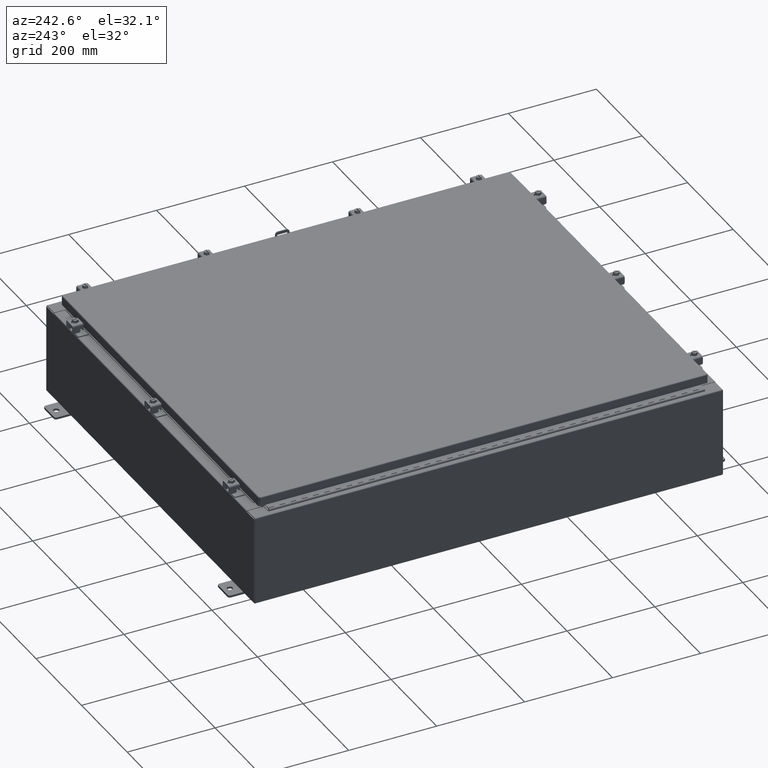
[diagram: clean part render]
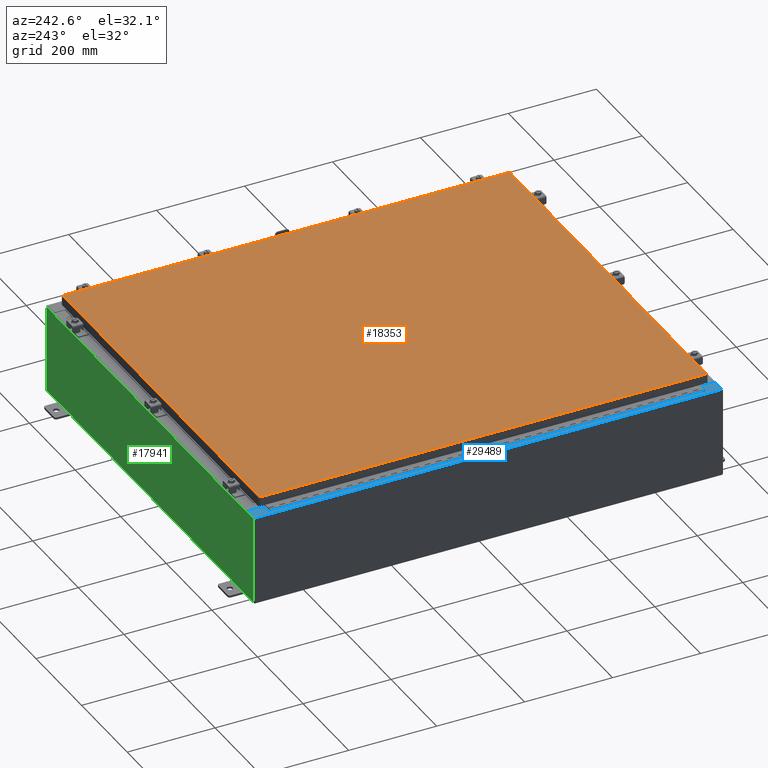
[diagram: same view with three faces highlighted in distinct colors, each labeled with its STEP entity id]
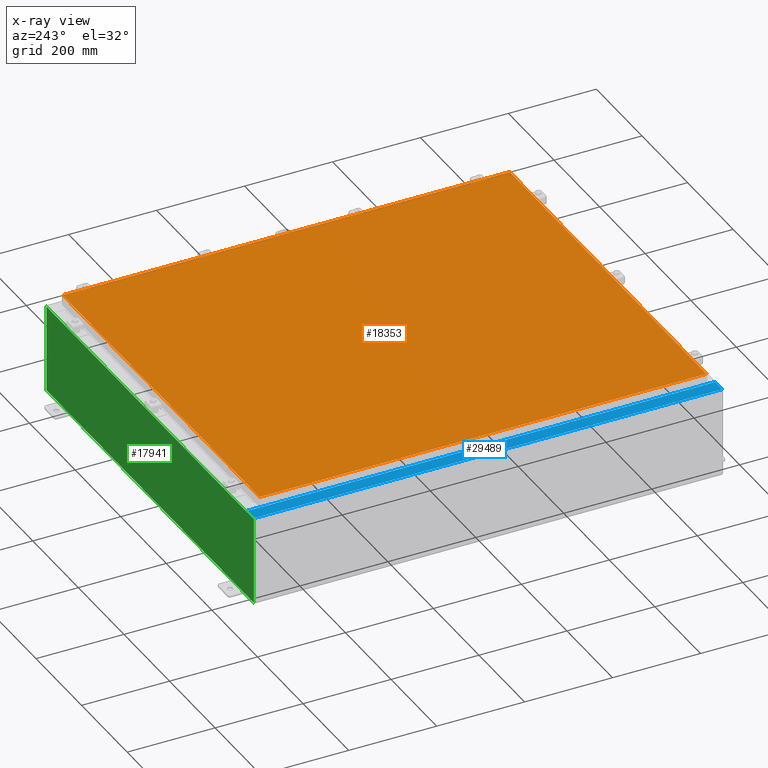
[diagram: x-ray of the same camera — body ghosted, the three highlighted faces saturated]
A machine part, auxiliary view with three faces highlighted in distinct colors.
The next image is the same camera in x-ray (body ghosted, the three faces saturated) — at least one of them is partly hidden behind the body in this view.
Their STEP definitions:

[orange] entity #18353 — the highlighted planar face has unit normal (0, 0, -1).
#290 = CARTESIAN_POINT ( 'NONE',  ( -16.99029999999998400, 20.00630000000000300, -2.048885995248197400E-016 ) ) ;
#4265 = DIRECTION ( 'NONE',  ( -1.000000000000000000, 0.0000000000000000000, -0.0000000000000000000 ) ) ;
#5693 = VECTOR ( 'NONE', #7946, 39.37007874015748100 ) ;
#6254 = EDGE_LOOP ( 'NONE', ( #27681, #9066, #42676, #47265 ) ) ;
#7071 = LINE ( 'NONE', #41256, #36309 ) ;
#7946 = DIRECTION ( 'NONE',  ( 0.0000000000000000000, -1.000000000000000000, 0.0000000000000000000 ) ) ;
#8059 = LINE ( 'NONE', #290, #5693 ) ;
#8889 = EDGE_CURVE ( 'NONE', #17192, #26689, #17222, .T. ) ;
#9066 = ORIENTED_EDGE ( 'NONE', *, *, #9402, .T. ) ;
#9402 = EDGE_CURVE ( 'NONE', #49528, #17192, #10587, .T. ) ;
#9453 = CARTESIAN_POINT ( 'NONE',  ( 16.99029999999999800, 20.00630000000000700, 1.946441695485787500E-015 ) ) ;
#9459 = CARTESIAN_POINT ( 'NONE',  ( 16.99029999999999800, -20.00630000000000300, -2.048885995248197400E-016 ) ) ;
#9757 = EDGE_CURVE ( 'NONE', #42767, #49528, #7071, .T. ) ;
#10587 = LINE ( 'NONE', #27753, #20722 ) ;
#13525 = EDGE_CURVE ( 'NONE', #26689, #42767, #8059, .T. ) ;
#13927 = CARTESIAN_POINT ( 'NONE',  ( -16.99029999999998400, 20.00630000000000300, -2.048885995248197400E-016 ) ) ;
#14813 = VECTOR ( 'NONE', #20966, 39.37007874015748100 ) ;
#17192 = VERTEX_POINT ( 'NONE', #28479 ) ;
#17222 = LINE ( 'NONE', #9453, #14813 ) ;
#18353 = ADVANCED_FACE ( 'NONE', ( #36370 ), #38241, .F. ) ;
#18399 = DIRECTION ( 'NONE',  ( 1.000000000000000000, -0.0000000000000000000, -0.0000000000000000000 ) ) ;
#19399 = CARTESIAN_POINT ( 'NONE',  ( 0.0000000000000000000, 0.0000000000000000000, 0.0000000000000000000 ) ) ;
#20722 = VECTOR ( 'NONE', #31584, 39.37007874015748100 ) ;
#20966 = DIRECTION ( 'NONE',  ( -1.000000000000000000, -0.0000000000000000000, -0.0000000000000000000 ) ) ;
#26689 = VERTEX_POINT ( 'NONE', #13927 ) ;
#27041 = DIRECTION ( 'NONE',  ( 0.0000000000000000000, 0.0000000000000000000, -1.000000000000000000 ) ) ;
#27681 = ORIENTED_EDGE ( 'NONE', *, *, #9757, .T. ) ;
#27753 = CARTESIAN_POINT ( 'NONE',  ( 16.99029999999999800, -20.00630000000000300, -2.048885995248197400E-016 ) ) ;
#28479 = CARTESIAN_POINT ( 'NONE',  ( 16.99029999999999800, 20.00630000000000700, 1.946441695485787500E-015 ) ) ;
#31584 = DIRECTION ( 'NONE',  ( 0.0000000000000000000, 1.000000000000000000, 0.0000000000000000000 ) ) ;
#36309 = VECTOR ( 'NONE', #18399, 39.37007874015748100 ) ;
#36370 = FACE_OUTER_BOUND ( 'NONE', #6254, .T. ) ;
#38241 = PLANE ( 'NONE',  #45289 ) ;
#41256 = CARTESIAN_POINT ( 'NONE',  ( -16.99029999999999800, -20.00630000000000700, 1.946441695485787500E-015 ) ) ;
#42330 = CARTESIAN_POINT ( 'NONE',  ( -16.99029999999999800, -20.00630000000000700, 1.946441695485787500E-015 ) ) ;
#42676 = ORIENTED_EDGE ( 'NONE', *, *, #8889, .T. ) ;
#42767 = VERTEX_POINT ( 'NONE', #42330 ) ;
#45289 = AXIS2_PLACEMENT_3D ( 'NONE', #19399, #27041, #4265 ) ;
#47265 = ORIENTED_EDGE ( 'NONE', *, *, #13525, .T. ) ;
#49528 = VERTEX_POINT ( 'NONE', #9459 ) ;

[blue] entity #29489 — the highlighted planar face has unit normal (0, 0, -1).
#268 = DIRECTION ( 'NONE',  ( -0.0000000000000000000, -1.000000000000000000, -0.0000000000000000000 ) ) ;
#1330 = VERTEX_POINT ( 'NONE', #45860 ) ;
#1677 = VECTOR ( 'NONE', #26052, 39.37007874015748100 ) ;
#1999 = ORIENTED_EDGE ( 'NONE', *, *, #44212, .F. ) ;
#2189 = ORIENTED_EDGE ( 'NONE', *, *, #44145, .F. ) ;
#2553 = CARTESIAN_POINT ( 'NONE',  ( -16.75005000000003000, 19.61242499999999500, 7.925300000000008900 ) ) ;
#2993 = CARTESIAN_POINT ( 'NONE',  ( -17.91230000000002300, 20.92529999999999600, 7.925300000000000000 ) ) ;
#3390 = VECTOR ( 'NONE', #34575, 39.37007874015748100 ) ;
#3400 = VERTEX_POINT ( 'NONE', #19755 ) ;
#3444 = FACE_OUTER_BOUND ( 'NONE', #24900, .T. ) ;
#3531 = LINE ( 'NONE', #18211, #12423 ) ;
#3636 = ORIENTED_EDGE ( 'NONE', *, *, #42020, .T. ) ;
#3907 = CARTESIAN_POINT ( 'NONE',  ( -16.75005000000003000, 19.59374999999999600, 7.925300000000008900 ) ) ;
#4589 = LINE ( 'NONE', #23044, #3390 ) ;
#5366 = CARTESIAN_POINT ( 'NONE',  ( -16.75005000000003000, -19.61242499999999100, 7.925300000000008900 ) ) ;
#6382 = DIRECTION ( 'NONE',  ( 1.000000000000000000, 0.0000000000000000000, 0.0000000000000000000 ) ) ;
#7154 = ORIENTED_EDGE ( 'NONE', *, *, #43254, .T. ) ;
#7159 = CARTESIAN_POINT ( 'NONE',  ( -16.69970000000002800, -20.92529999999999300, 7.925300000000008900 ) ) ;
#7590 = VERTEX_POINT ( 'NONE', #13552 ) ;
#7993 = VERTEX_POINT ( 'NONE', #38382 ) ;
#8133 = ORIENTED_EDGE ( 'NONE', *, *, #46069, .F. ) ;
#9158 = DIRECTION ( 'NONE',  ( 1.000000000000000000, 0.0000000000000000000, 0.0000000000000000000 ) ) ;
#9810 = CARTESIAN_POINT ( 'NONE',  ( -16.75005000000003000, -19.59374999999999300, 7.925300000000008900 ) ) ;
#10735 = CARTESIAN_POINT ( 'NONE',  ( -16.69970000000002800, 19.63109999999999300, 7.925300000000008900 ) ) ;
#11008 = VECTOR ( 'NONE', #35527, 39.37007874015748100 ) ;
#12423 = VECTOR ( 'NONE', #48779, 39.37007874015748100 ) ;
#13400 = LINE ( 'NONE', #16543, #11008 ) ;
#13552 = CARTESIAN_POINT ( 'NONE',  ( -16.75005000000003000, 19.59374999999999600, 7.925300000000008900 ) ) ;
#13958 = LINE ( 'NONE', #21486, #34282 ) ;
#14031 = ORIENTED_EDGE ( 'NONE', *, *, #44296, .F. ) ;
#14162 = VECTOR ( 'NONE', #45051, 39.37007874015748100 ) ;
#14858 = CARTESIAN_POINT ( 'NONE',  ( -5.679009539018325600E-014, 0.0000000000000000000, 7.925300000000127900 ) ) ;
#16543 = CARTESIAN_POINT ( 'NONE',  ( -16.75005000000003000, -19.63109999999999300, 7.925300000000008900 ) ) ;
#17046 = ORIENTED_EDGE ( 'NONE', *, *, #41861, .T. ) ;
#18211 = CARTESIAN_POINT ( 'NONE',  ( -5.679009539018325600E-014, 20.92529999999999600, 7.925300000000127900 ) ) ;
#18691 = DIRECTION ( 'NONE',  ( 7.132762385546384700E-015, 0.0000000000000000000, -1.000000000000000000 ) ) ;
#19008 = ORIENTED_EDGE ( 'NONE', *, *, #44892, .F. ) ;
#19614 = VECTOR ( 'NONE', #20037, 39.37007874015748100 ) ;
#19755 = CARTESIAN_POINT ( 'NONE',  ( -17.91230000000002300, -20.92529999999999300, 7.925300000000000000 ) ) ;
#19815 = LINE ( 'NONE', #3907, #28748 ) ;
#19962 = CIRCLE ( 'NONE', #39369, 0.01867499999999949400 ) ;
#20037 = DIRECTION ( 'NONE',  ( 0.0000000000000000000, 1.000000000000000000, 0.0000000000000000000 ) ) ;
#21428 = ORIENTED_EDGE ( 'NONE', *, *, #42583, .F. ) ;
#21486 = CARTESIAN_POINT ( 'NONE',  ( -16.71270000000003000, -19.59374999999999300, 7.925300000000008900 ) ) ;
#21546 = VERTEX_POINT ( 'NONE', #9810 ) ;
#21786 = VERTEX_POINT ( 'NONE', #7159 ) ;
#21936 = LINE ( 'NONE', #10735, #1677 ) ;
#23044 = CARTESIAN_POINT ( 'NONE',  ( -16.69970000000002800, 0.0000000000000000000, 7.925300000000008900 ) ) ;
#23670 = LINE ( 'NONE', #27436, #42804 ) ;
#23784 = ORIENTED_EDGE ( 'NONE', *, *, #41624, .F. ) ;
#24289 = LINE ( 'NONE', #2993, #14162 ) ;
#24446 = VERTEX_POINT ( 'NONE', #43832 ) ;
#24900 = EDGE_LOOP ( 'NONE', ( #23784, #17046, #3636, #21428, #40150, #7154, #2189, #1999, #14031, #19008, #39737, #8133 ) ) ;
#25047 = AXIS2_PLACEMENT_3D ( 'NONE', #14858, #18691, #45438 ) ;
#25709 = VERTEX_POINT ( 'NONE', #36376 ) ;
#26052 = DIRECTION ( 'NONE',  ( -1.000000000000000000, 0.0000000000000000000, 0.0000000000000000000 ) ) ;
#26538 = DIRECTION ( 'NONE',  ( 1.000000000000000000, 0.0000000000000000000, 0.0000000000000000000 ) ) ;
#27436 = CARTESIAN_POINT ( 'NONE',  ( -1.314176917633203400E-013, -20.92530000000006000, 7.925300000000127900 ) ) ;
#28421 = CARTESIAN_POINT ( 'NONE',  ( -17.91230000000002300, 20.92529999999999600, 7.925300000000000000 ) ) ;
#28748 = VECTOR ( 'NONE', #26538, 39.37007874015748100 ) ;
#29203 = DIRECTION ( 'NONE',  ( -7.132762385546384700E-015, -0.0000000000000000000, 1.000000000000000000 ) ) ;
#29489 = ADVANCED_FACE ( 'NONE', ( #3444 ), #37689, .F. ) ;
#31284 = DIRECTION ( 'NONE',  ( 1.000000000000000000, -3.566381192773192400E-015, 7.132762385546384700E-015 ) ) ;
#32001 = DIRECTION ( 'NONE',  ( -7.132762385546384700E-015, -0.0000000000000000000, 1.000000000000000000 ) ) ;
#33680 = VERTEX_POINT ( 'NONE', #28421 ) ;
#34282 = VECTOR ( 'NONE', #48241, 39.37007874015748100 ) ;
#34575 = DIRECTION ( 'NONE',  ( 0.0000000000000000000, 1.000000000000000000, 0.0000000000000000000 ) ) ;
#35527 = DIRECTION ( 'NONE',  ( 1.000000000000000000, 0.0000000000000000000, 0.0000000000000000000 ) ) ;
#36161 = VERTEX_POINT ( 'NONE', #43707 ) ;
#36376 = CARTESIAN_POINT ( 'NONE',  ( -16.69970000000002800, 19.63109999999999300, 7.925300000000008900 ) ) ;
#37171 = VERTEX_POINT ( 'NONE', #39391 ) ;
#37689 = PLANE ( 'NONE',  #25047 ) ;
#38382 = CARTESIAN_POINT ( 'NONE',  ( -16.69970000000002800, 20.92529999999999600, 7.925300000000008900 ) ) ;
#39054 = CARTESIAN_POINT ( 'NONE',  ( -16.69970000000002800, 0.0000000000000000000, 7.925300000000008900 ) ) ;
#39369 = AXIS2_PLACEMENT_3D ( 'NONE', #5366, #32001, #9158 ) ;
#39391 = CARTESIAN_POINT ( 'NONE',  ( -16.75005000000003000, 19.63109999999999300, 7.925300000000008900 ) ) ;
#39737 = ORIENTED_EDGE ( 'NONE', *, *, #45423, .F. ) ;
#40150 = ORIENTED_EDGE ( 'NONE', *, *, #42809, .T. ) ;
#41112 = LINE ( 'NONE', #39054, #19614 ) ;
#41624 = EDGE_CURVE ( 'NONE', #25709, #37171, #21936, .T. ) ;
#41861 = EDGE_CURVE ( 'NONE', #25709, #7993, #41112, .T. ) ;
#42020 = EDGE_CURVE ( 'NONE', #7993, #33680, #3531, .T. ) ;
#42117 = AXIS2_PLACEMENT_3D ( 'NONE', #2553, #29203, #6382 ) ;
#42569 = VECTOR ( 'NONE', #268, 39.37007874015748100 ) ;
#42583 = EDGE_CURVE ( 'NONE', #3400, #33680, #24289, .T. ) ;
#42804 = VECTOR ( 'NONE', #31284, 39.37007874015748100 ) ;
#42809 = EDGE_CURVE ( 'NONE', #3400, #21786, #23670, .T. ) ;
#43254 = EDGE_CURVE ( 'NONE', #21786, #24446, #4589, .T. ) ;
#43510 = CIRCLE ( 'NONE', #42117, 0.01867499999999949400 ) ;
#43707 = CARTESIAN_POINT ( 'NONE',  ( -16.71270000000003000, 19.59374999999999600, 7.925300000000008900 ) ) ;
#43774 = LINE ( 'NONE', #46017, #42569 ) ;
#43832 = CARTESIAN_POINT ( 'NONE',  ( -16.69970000000002800, -19.63109999999999300, 7.925300000000008900 ) ) ;
#43893 = CARTESIAN_POINT ( 'NONE',  ( -16.71270000000003000, -19.59374999999999300, 7.925300000000008900 ) ) ;
#44145 = EDGE_CURVE ( 'NONE', #1330, #24446, #13400, .T. ) ;
#44212 = EDGE_CURVE ( 'NONE', #21546, #1330, #19962, .T. ) ;
#44263 = VERTEX_POINT ( 'NONE', #43893 ) ;
#44296 = EDGE_CURVE ( 'NONE', #44263, #21546, #13958, .T. ) ;
#44892 = EDGE_CURVE ( 'NONE', #36161, #44263, #43774, .T. ) ;
#45051 = DIRECTION ( 'NONE',  ( -0.0000000000000000000, 1.000000000000000000, -0.0000000000000000000 ) ) ;
#45423 = EDGE_CURVE ( 'NONE', #7590, #36161, #19815, .T. ) ;
#45438 = DIRECTION ( 'NONE',  ( -1.000000000000000000, 0.0000000000000000000, -7.132762385546384700E-015 ) ) ;
#45860 = CARTESIAN_POINT ( 'NONE',  ( -16.75005000000003000, -19.63109999999999300, 7.925300000000008900 ) ) ;
#46017 = CARTESIAN_POINT ( 'NONE',  ( -16.71270000000003000, 19.59374999999999600, 7.925300000000008900 ) ) ;
#46069 = EDGE_CURVE ( 'NONE', #37171, #7590, #43510, .T. ) ;
#48241 = DIRECTION ( 'NONE',  ( -1.000000000000000000, 0.0000000000000000000, 0.0000000000000000000 ) ) ;
#48779 = DIRECTION ( 'NONE',  ( -1.000000000000000000, 0.0000000000000000000, -7.132762385546384700E-015 ) ) ;

[green] entity #17941 — the highlighted planar face has unit normal (0, -1, 0).
#452 = VECTOR ( 'NONE', #27593, 39.37007874015748100 ) ;
#1638 = DIRECTION ( 'NONE',  ( 0.0000000000000000000, 0.0000000000000000000, 1.000000000000000000 ) ) ;
#1642 = LINE ( 'NONE', #42795, #30863 ) ;
#1925 = CARTESIAN_POINT ( 'NONE',  ( -16.67454999999999600, 0.0000000000000000000, 3.874950000000000100 ) ) ;
#1943 = PLANE ( 'NONE',  #46162 ) ;
#3023 = CARTESIAN_POINT ( 'NONE',  ( -16.65587499999999800, 0.0000000000000000000, 3.874950000000000100 ) ) ;
#3519 = CARTESIAN_POINT ( 'NONE',  ( -16.63719999999999600, 3.756290991288361700E-016, 3.912300000000000100 ) ) ;
#3841 = CARTESIAN_POINT ( 'NONE',  ( -16.67454999999999600, 0.0000000000000000000, 3.925300000000000500 ) ) ;
#5192 = VERTEX_POINT ( 'NONE', #10755 ) ;
#5626 = DIRECTION ( 'NONE',  ( 0.0000000000000000000, -1.000000000000000000, 0.0000000000000000000 ) ) ;
#5783 = EDGE_CURVE ( 'NONE', #13607, #24062, #30590, .T. ) ;
#5795 = DIRECTION ( 'NONE',  ( 0.0000000000000000000, -0.0000000000000000000, -1.000000000000000000 ) ) ;
#5846 = ORIENTED_EDGE ( 'NONE', *, *, #8819, .F. ) ;
#6068 = EDGE_CURVE ( 'NONE', #33784, #36267, #10869, .T. ) ;
#6735 = CARTESIAN_POINT ( 'NONE',  ( -16.63719999999999600, 3.756290991288361700E-016, 3.912300000000000100 ) ) ;
#6844 = DIRECTION ( 'NONE',  ( 0.0000000000000000000, 0.0000000000000000000, -1.000000000000000000 ) ) ;
#7059 = LINE ( 'NONE', #39646, #36297 ) ;
#8008 = AXIS2_PLACEMENT_3D ( 'NONE', #10946, #37628, #14799 ) ;
#8455 = EDGE_CURVE ( 'NONE', #31942, #24062, #11246, .T. ) ;
#8466 = EDGE_CURVE ( 'NONE', #19685, #31942, #39293, .T. ) ;
#8524 = EDGE_CURVE ( 'NONE', #27485, #19685, #48307, .T. ) ;
#8598 = EDGE_CURVE ( 'NONE', #27485, #9257, #15435, .T. ) ;
#8613 = CARTESIAN_POINT ( 'NONE',  ( -17.92529999999999600, 0.0000000000000000000, -3.925299999999999100 ) ) ;
#8819 = EDGE_CURVE ( 'NONE', #10541, #9257, #7059, .T. ) ;
#9114 = EDGE_CURVE ( 'NONE', #5192, #10541, #48263, .T. ) ;
#9257 = VERTEX_POINT ( 'NONE', #19440 ) ;
#9332 = EDGE_CURVE ( 'NONE', #33784, #5192, #1642, .T. ) ;
#9389 = EDGE_CURVE ( 'NONE', #36267, #39975, #41018, .T. ) ;
#9435 = LINE ( 'NONE', #25724, #38687 ) ;
#9600 = AXIS2_PLACEMENT_3D ( 'NONE', #3023, #29678, #6844 ) ;
#9690 = EDGE_CURVE ( 'NONE', #39975, #35182, #9435, .T. ) ;
#9828 = EDGE_CURVE ( 'NONE', #35182, #13607, #45310, .T. ) ;
#10324 = CARTESIAN_POINT ( 'NONE',  ( -16.67454999999999600, -0.0000000000000000000, 0.0000000000000000000 ) ) ;
#10541 = VERTEX_POINT ( 'NONE', #19081 ) ;
#10755 = CARTESIAN_POINT ( 'NONE',  ( 16.67455000000000700, 0.0000000000000000000, 3.874950000000000100 ) ) ;
#10869 = LINE ( 'NONE', #12493, #46735 ) ;
#10946 = CARTESIAN_POINT ( 'NONE',  ( 16.65587500000000500, 0.0000000000000000000, 3.874950000000000100 ) ) ;
#11102 = ORIENTED_EDGE ( 'NONE', *, *, #5783, .T. ) ;
#11246 = LINE ( 'NONE', #10324, #40476 ) ;
#12246 = DIRECTION ( 'NONE',  ( -8.681145560800009800E-014, 0.0000000000000000000, -1.000000000000000000 ) ) ;
#12493 = CARTESIAN_POINT ( 'NONE',  ( -17.92529999999999600, 0.0000000000000000000, 3.925300000000000500 ) ) ;
#13607 = VERTEX_POINT ( 'NONE', #19613 ) ;
#13739 = CARTESIAN_POINT ( 'NONE',  ( 16.67455000000001100, 0.0000000000000000000, 3.925300000000000500 ) ) ;
#14799 = DIRECTION ( 'NONE',  ( 0.0000000000000000000, 0.0000000000000000000, -1.000000000000000000 ) ) ;
#15002 = DIRECTION ( 'NONE',  ( 1.000000000000000000, 0.0000000000000000000, 0.0000000000000000000 ) ) ;
#15435 = LINE ( 'NONE', #3519, #24350 ) ;
#16096 = ORIENTED_EDGE ( 'NONE', *, *, #9389, .T. ) ;
#17941 = ADVANCED_FACE ( 'NONE', ( #21456 ), #1943, .F. ) ;
#17999 = CARTESIAN_POINT ( 'NONE',  ( -16.63719999999999600, -0.0000000000000000000, 3.874950000000000100 ) ) ;
#18503 = CARTESIAN_POINT ( 'NONE',  ( -16.63719999999999600, -0.0000000000000000000, 0.0000000000000000000 ) ) ;
#19081 = CARTESIAN_POINT ( 'NONE',  ( 16.63720000000000700, 0.0000000000000000000, 3.874950000000000100 ) ) ;
#19440 = CARTESIAN_POINT ( 'NONE',  ( 16.63720000000000700, 0.0000000000000000000, 3.912300000000000100 ) ) ;
#19613 = CARTESIAN_POINT ( 'NONE',  ( -17.92529999999999600, 0.0000000000000000000, 3.925300000000000500 ) ) ;
#19685 = VERTEX_POINT ( 'NONE', #17999 ) ;
#21456 = FACE_OUTER_BOUND ( 'NONE', #25885, .T. ) ;
#22307 = DIRECTION ( 'NONE',  ( 0.0000000000000000000, 0.0000000000000000000, -1.000000000000000000 ) ) ;
#22799 = ORIENTED_EDGE ( 'NONE', *, *, #8524, .F. ) ;
#24062 = VERTEX_POINT ( 'NONE', #3841 ) ;
#24350 = VECTOR ( 'NONE', #15002, 39.37007874015748100 ) ;
#25657 = DIRECTION ( 'NONE',  ( 0.0000000000000000000, 0.0000000000000000000, 1.000000000000000000 ) ) ;
#25671 = ORIENTED_EDGE ( 'NONE', *, *, #8455, .F. ) ;
#25724 = CARTESIAN_POINT ( 'NONE',  ( -17.92529999999999600, 0.0000000000000000000, -3.925299999999999100 ) ) ;
#25882 = CARTESIAN_POINT ( 'NONE',  ( 17.92530000000000400, 0.0000000000000000000, -3.925299999999999100 ) ) ;
#25885 = EDGE_LOOP ( 'NONE', ( #25671, #49289, #22799, #46697, #5846, #39894, #41477, #28082, #16096, #28394, #27301, #11102 ) ) ;
#26201 = DIRECTION ( 'NONE',  ( 1.000000000000000000, 0.0000000000000000000, 0.0000000000000000000 ) ) ;
#27301 = ORIENTED_EDGE ( 'NONE', *, *, #9828, .T. ) ;
#27485 = VERTEX_POINT ( 'NONE', #6735 ) ;
#27593 = DIRECTION ( 'NONE',  ( 0.0000000000000000000, 0.0000000000000000000, -1.000000000000000000 ) ) ;
#28082 = ORIENTED_EDGE ( 'NONE', *, *, #6068, .T. ) ;
#28394 = ORIENTED_EDGE ( 'NONE', *, *, #9690, .T. ) ;
#29396 = VECTOR ( 'NONE', #26201, 39.37007874015748100 ) ;
#29678 = DIRECTION ( 'NONE',  ( -0.0000000000000000000, 1.000000000000000000, -0.0000000000000000000 ) ) ;
#30590 = LINE ( 'NONE', #37552, #29396 ) ;
#30863 = VECTOR ( 'NONE', #12246, 39.37007874015748100 ) ;
#31426 = CARTESIAN_POINT ( 'NONE',  ( 17.92530000000000400, 0.0000000000000000000, 3.925300000000000500 ) ) ;
#31942 = VERTEX_POINT ( 'NONE', #1925 ) ;
#32982 = CARTESIAN_POINT ( 'NONE',  ( 17.92530000000000400, 0.0000000000000000000, 3.925300000000000500 ) ) ;
#33784 = VERTEX_POINT ( 'NONE', #13739 ) ;
#33908 = VECTOR ( 'NONE', #45479, 39.37007874015748100 ) ;
#34073 = CARTESIAN_POINT ( 'NONE',  ( -17.92529999999999600, 0.0000000000000000000, 3.925300000000000500 ) ) ;
#35182 = VERTEX_POINT ( 'NONE', #8613 ) ;
#35357 = DIRECTION ( 'NONE',  ( 1.000000000000000000, 0.0000000000000000000, 0.0000000000000000000 ) ) ;
#36267 = VERTEX_POINT ( 'NONE', #32982 ) ;
#36297 = VECTOR ( 'NONE', #1638, 39.37007874015748100 ) ;
#36915 = VECTOR ( 'NONE', #22307, 39.37007874015748100 ) ;
#37552 = CARTESIAN_POINT ( 'NONE',  ( -17.92529999999999600, 0.0000000000000000000, 3.925300000000000500 ) ) ;
#37628 = DIRECTION ( 'NONE',  ( -0.0000000000000000000, 1.000000000000000000, -0.0000000000000000000 ) ) ;
#38687 = VECTOR ( 'NONE', #48650, 39.37007874015748100 ) ;
#39293 = CIRCLE ( 'NONE', #9600, 0.01867499999999949400 ) ;
#39646 = CARTESIAN_POINT ( 'NONE',  ( 16.63720000000000700, 0.0000000000000000000, 0.0000000000000000000 ) ) ;
#39894 = ORIENTED_EDGE ( 'NONE', *, *, #9114, .F. ) ;
#39975 = VERTEX_POINT ( 'NONE', #25882 ) ;
#40476 = VECTOR ( 'NONE', #25657, 39.37007874015748100 ) ;
#41018 = LINE ( 'NONE', #31426, #452 ) ;
#41477 = ORIENTED_EDGE ( 'NONE', *, *, #9332, .F. ) ;
#42795 = CARTESIAN_POINT ( 'NONE',  ( 16.67454999999967000, -0.0000000000000000000, -1.447541957108349400E-012 ) ) ;
#45310 = LINE ( 'NONE', #34073, #33908 ) ;
#45479 = DIRECTION ( 'NONE',  ( -0.0000000000000000000, -0.0000000000000000000, 1.000000000000000000 ) ) ;
#46162 = AXIS2_PLACEMENT_3D ( 'NONE', #47676, #5626, #5795 ) ;
#46697 = ORIENTED_EDGE ( 'NONE', *, *, #8598, .T. ) ;
#46735 = VECTOR ( 'NONE', #35357, 39.37007874015748100 ) ;
#47676 = CARTESIAN_POINT ( 'NONE',  ( 0.0000000000000000000, 0.0000000000000000000, 0.0000000000000000000 ) ) ;
#48263 = CIRCLE ( 'NONE', #8008, 0.01867499999999949400 ) ;
#48307 = LINE ( 'NONE', #18503, #36915 ) ;
#48650 = DIRECTION ( 'NONE',  ( -1.000000000000000000, -0.0000000000000000000, -0.0000000000000000000 ) ) ;
#49289 = ORIENTED_EDGE ( 'NONE', *, *, #8466, .F. ) ;